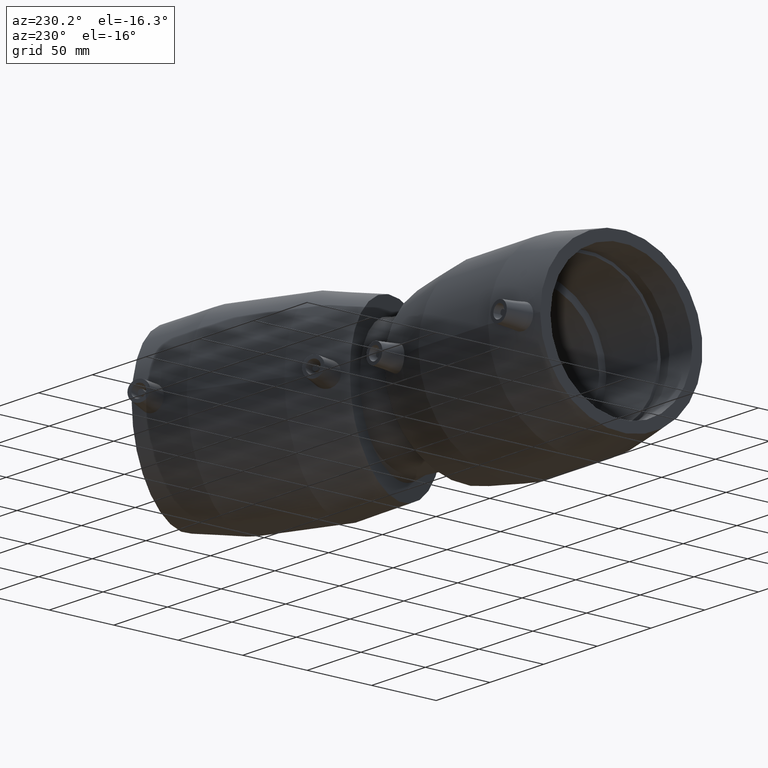
[diagram: clean part render]
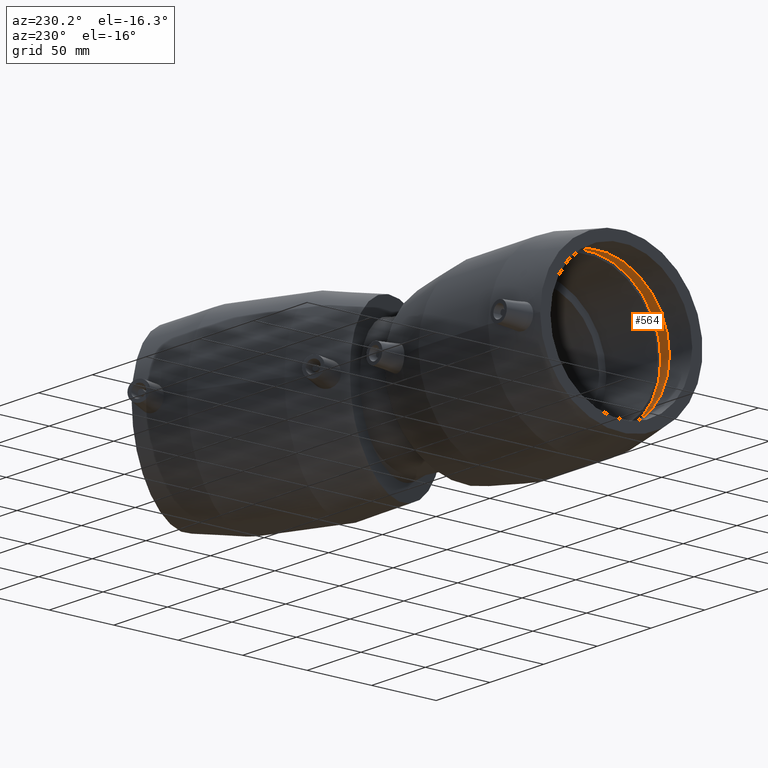
[diagram: same view with one face highlighted and labeled with its STEP entity id]
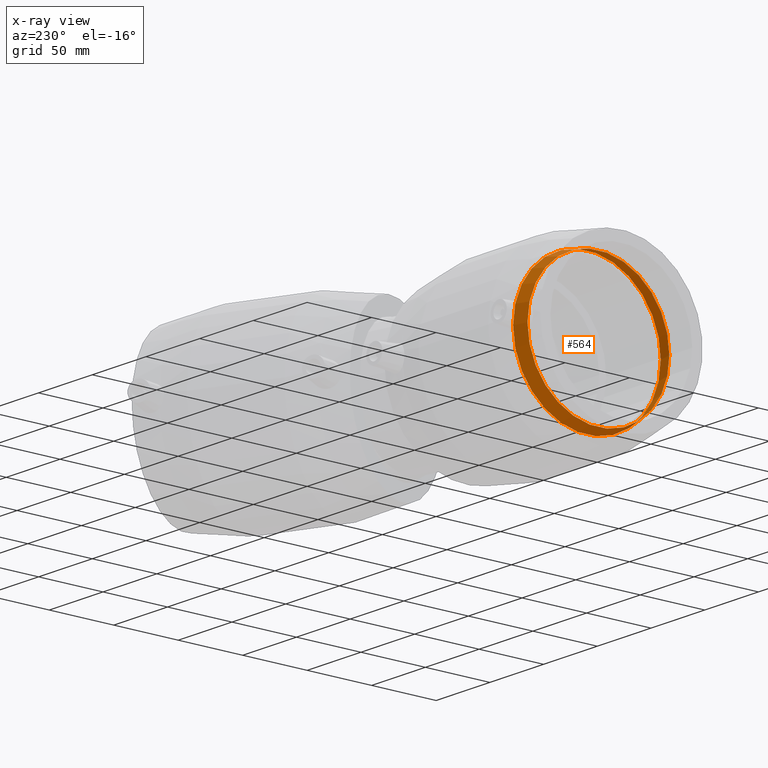
[diagram: x-ray of the same camera — body ghosted, the highlighted face saturated]
A machine part, auxiliary view. The second image highlights one B-rep face of the part: STEP entity #564.
The next image is the same camera in x-ray: the body ghosted, the highlighted face saturated — about 0% of this face is hidden behind the body in this view.
In plain terms, the highlighted conical surface has half-angle 12 deg.
Its self-contained STEP definition (entity closure, byte-faithful):
#18=CONICAL_SURFACE('',#640,56.1336349955734,12.);
#85=FACE_BOUND('',#209,.T.);
#136=FACE_OUTER_BOUND('',#208,.T.);
#208=EDGE_LOOP('',(#481));
#209=EDGE_LOOP('',(#482));
#294=CIRCLE('',#639,57.2672699911469);
#295=CIRCLE('',#641,55.);
#345=VERTEX_POINT('',#1280);
#346=VERTEX_POINT('',#1283);
#400=EDGE_CURVE('',#345,#345,#294,.T.);
#401=EDGE_CURVE('',#346,#346,#295,.T.);
#481=ORIENTED_EDGE('',*,*,#401,.F.);
#482=ORIENTED_EDGE('',*,*,#400,.T.);
#564=ADVANCED_FACE('',(#136,#85),#18,.F.);
#639=AXIS2_PLACEMENT_3D('',#1281,#785,#786);
#640=AXIS2_PLACEMENT_3D('',#1282,#787,#788);
#641=AXIS2_PLACEMENT_3D('',#1284,#789,#790);
#785=DIRECTION('center_axis',(1.,1.83697019872103E-16,0.));
#786=DIRECTION('ref_axis',(0.,0.,-1.));
#787=DIRECTION('center_axis',(1.,1.83697019872103E-16,0.));
#788=DIRECTION('ref_axis',(-1.68112701893672E-16,1.,0.));
#789=DIRECTION('center_axis',(1.,1.83697019872103E-16,0.));
#790=DIRECTION('ref_axis',(0.,0.,-1.));
#1280=CARTESIAN_POINT('',(-40.4,57.2672699911469,0.));
#1281=CARTESIAN_POINT('Origin',(-40.4,5.87830463590729E-15,0.));
#1282=CARTESIAN_POINT('Origin',(-45.7333333333333,4.89858719658941E-15,
0.));
#1283=CARTESIAN_POINT('',(-51.0666666666667,55.,0.));
#1284=CARTESIAN_POINT('Origin',(-51.0666666666667,3.91886975727153E-15,
0.));